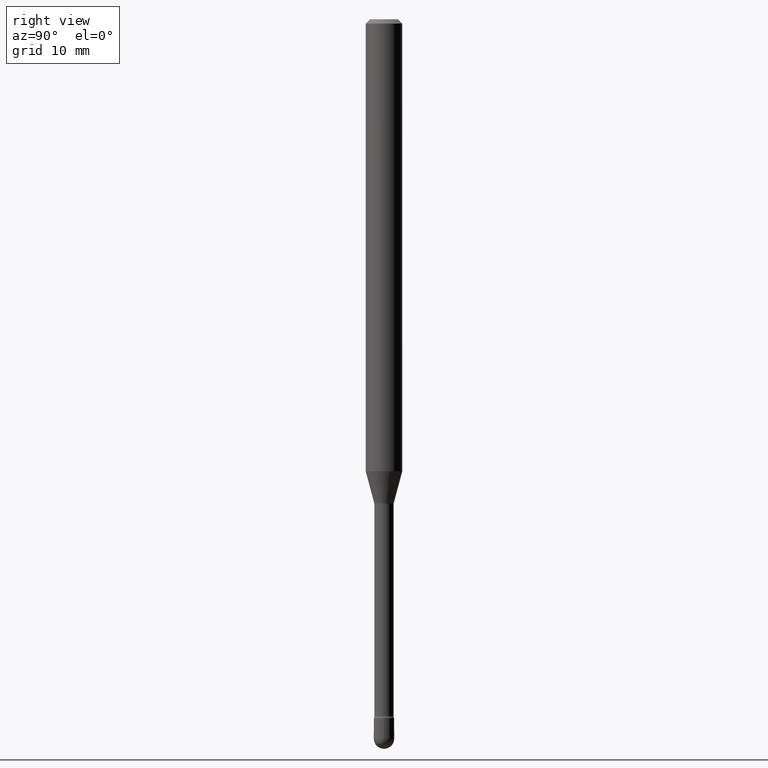
[diagram: clean part render]
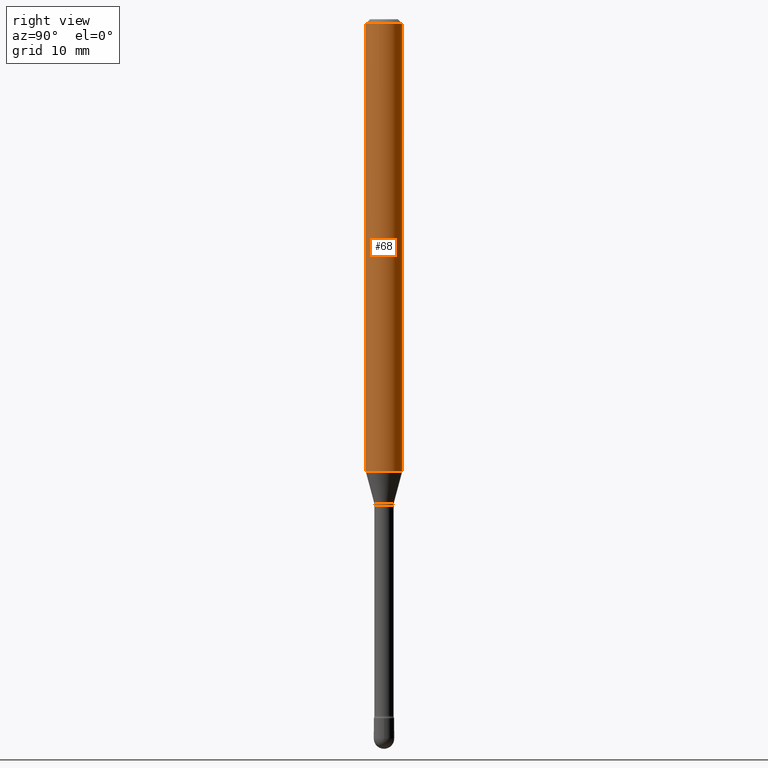
[diagram: same view with one face highlighted and labeled with its STEP entity id]
A machine part, right view. The second image highlights one B-rep face of the part: STEP entity #68.
In plain terms, the highlighted cylindrical surface (edge-blend (fillet) strip) has radius 1.5875 mm, axis along (-0, 0, 1).
Its self-contained STEP definition (entity closure, byte-faithful):
#8 = ORIENTED_EDGE ( 'NONE', *, *, #414, .T. ) ;
#17 = CARTESIAN_POINT ( 'NONE',  ( 3.789374653624952942E-29, -5.410096300461916682E-15, -1.549531296095961519 ) ) ;
#31 = CARTESIAN_POINT ( 'NONE',  ( -1.169113584055446105E-44, 1.669184350826100908E-30, 4.780733988912460139E-16 ) ) ;
#65 = FACE_OUTER_BOUND ( 'NONE', #273, .T. ) ;
#68 = ADVANCED_FACE ( 'NONE', ( #65 ), #303, .T. ) ;
#105 = CARTESIAN_POINT ( 'NONE',  ( -4.364351673553916201E-16, -0.06250000000000000000, 6.962884292238308873E-16 ) ) ;
#139 = DIRECTION ( 'NONE',  ( -2.445497334046926869E-29, 3.491440485321357184E-15, 1.000000000000000000 ) ) ;
#143 = VERTEX_POINT ( 'NONE', #381 ) ;
#158 = DIRECTION ( 'NONE',  ( -6.982962677686265922E-15, -1.000000000000000000, 3.491440485321357973E-15 ) ) ;
#172 = ORIENTED_EDGE ( 'NONE', *, *, #424, .F. ) ;
#174 = VERTEX_POINT ( 'NONE', #296 ) ;
#186 = LINE ( 'NONE', #539, #295 ) ;
#190 = DIRECTION ( 'NONE',  ( -2.445497334046926588E-29, 3.491440485321357579E-15, 1.000000000000000000 ) ) ;
#220 = CARTESIAN_POINT ( 'NONE',  ( 4.440892098501002843E-16, 0.06249999999999455991, -1.549531296095961963 ) ) ;
#238 = VECTOR ( 'NONE', #139, 39.37007874015748143 ) ;
#239 = DIRECTION ( 'NONE',  ( -2.445497334046926869E-29, 3.491440485321357184E-15, 1.000000000000000000 ) ) ;
#255 = VERTEX_POINT ( 'NONE', #403 ) ;
#271 = VERTEX_POINT ( 'NONE', #220 ) ;
#273 = EDGE_LOOP ( 'NONE', ( #324, #8, #278, #172 ) ) ;
#275 = DIRECTION ( 'NONE',  ( -2.445497334046926588E-29, 3.491440485321357579E-15, 1.000000000000000000 ) ) ;
#278 = ORIENTED_EDGE ( 'NONE', *, *, #524, .F. ) ;
#295 = VECTOR ( 'NONE', #239, 39.37007874015748143 ) ;
#296 = CARTESIAN_POINT ( 'NONE',  ( -4.364351673553912750E-16, -0.06250000000000005551, -0.01499999999999986587 ) ) ;
#303 = CYLINDRICAL_SURFACE ( 'NONE', #426, 0.06250000000000000000 ) ;
#324 = ORIENTED_EDGE ( 'NONE', *, *, #444, .T. ) ;
#343 = CIRCLE ( 'NONE', #554, 0.06250000000000000000 ) ;
#377 = DIRECTION ( 'NONE',  ( -6.982962677686265922E-15, -1.000000000000000000, 4.370956789862821150E-15 ) ) ;
#381 = CARTESIAN_POINT ( 'NONE',  ( 4.440892098501006787E-16, 0.06249999999999995143, -0.01500000000000030129 ) ) ;
#403 = CARTESIAN_POINT ( 'NONE',  ( -4.364351673553540013E-16, -0.06250000000000544009, -1.549531296095961297 ) ) ;
#414 = EDGE_CURVE ( 'NONE', #271, #143, #186, .T. ) ;
#420 = DIRECTION ( 'NONE',  ( -6.982962677686265922E-15, -1.000000000000000000, 3.483106191921935554E-15 ) ) ;
#422 = LINE ( 'NONE', #105, #238 ) ;
#424 = EDGE_CURVE ( 'NONE', #255, #174, #422, .T. ) ;
#426 = AXIS2_PLACEMENT_3D ( 'NONE', #31, #551, #158 ) ;
#427 = CIRCLE ( 'NONE', #489, 0.06250000000000000000 ) ;
#444 = EDGE_CURVE ( 'NONE', #255, #271, #343, .T. ) ;
#489 = AXIS2_PLACEMENT_3D ( 'NONE', #494, #190, #420 ) ;
#494 = CARTESIAN_POINT ( 'NONE',  ( 3.668246001070409676E-31, -5.237160727982065186E-17, -0.01500000000000008271 ) ) ;
#524 = EDGE_CURVE ( 'NONE', #174, #143, #427, .T. ) ;
#539 = CARTESIAN_POINT ( 'NONE',  ( 4.440892098500625669E-16, 0.06250000000000000000, 2.598583685586612392E-16 ) ) ;
#551 = DIRECTION ( 'NONE',  ( -2.445497334046926588E-29, 3.491440485321357579E-15, 1.000000000000000000 ) ) ;
#554 = AXIS2_PLACEMENT_3D ( 'NONE', #17, #275, #377 ) ;